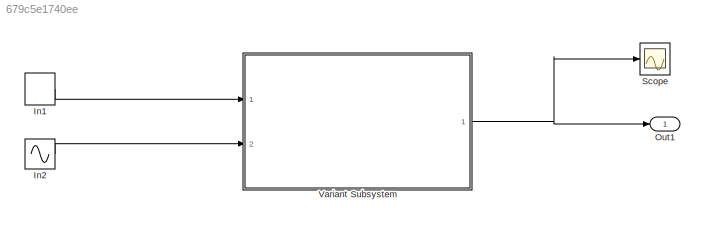
MODEL slx_679c5e1740ee
KIND model
CONFIG AbsTol = auto
CONFIG EnableMultiTasking = off
CONFIG FixedStep = auto
CONFIG MaxStep = auto
CONFIG MinStep = auto
CONFIG RelTol = 1e-3
CONFIG SampleTimeConstraint = Unconstrained
CONFIG Solver = FixedStepAuto
CONFIG SolverName = FixedStepAuto
CONFIG StartTime = 0.0
CONFIG StopTime = 10.0
BLOCK [DiscretePulseGenerator] In1
  Period = 10
  Ports = [0, 1]
  PulseWidth = 5
BLOCK [Sin] In2
  Amplitude = 20
  Bias = 20
  Frequency = 2*pi/24
  Phase = 180
  Ports = [0, 1]
  SampleTime = 1
  SineType = Sample based
BLOCK [Outport] Out1
  IconDisplay = Port number
BLOCK [Scope] Scope
  NumInputPorts = 1
  Ports = [1]
  ScopeSpecificationString = Simulink.scopes.TimeScopeBlockCfg('CurrentConfiguration', extmgr.ConfigurationSet(extmgr.Configuration('Core','General UI',true),extmgr.Configuration('Core','Source UI',true),extmgr.Configuration('Sources','WiredSimulink',true),extmgr.Configuration('Visuals','Time Domain',true,'SerializedDisplays',{struct('MinYLimReal','-650.00000','MaxYLimReal','5850.00000','YLabelReal','','MinYLimMag',' 0.00000'...<+1355ch>
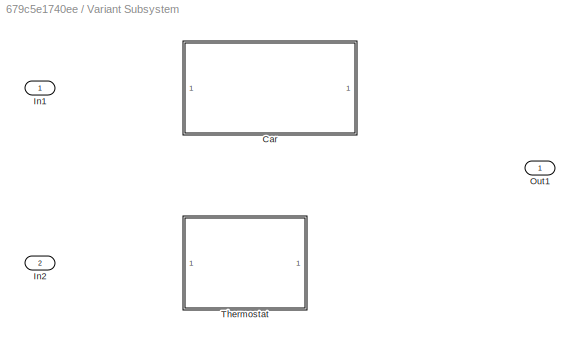
BLOCK [SubSystem] Variant Subsystem
  Ports = [2, 1]
  RequestExecContextInheritance = off
  Variant = on
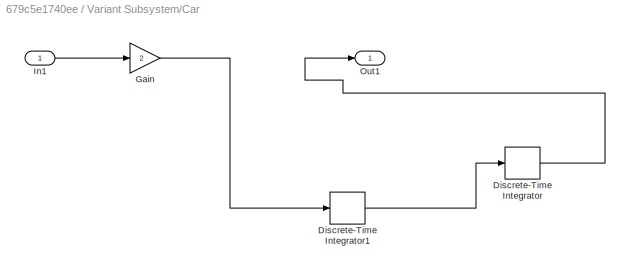
BLOCK [SubSystem] Variant Subsystem/Car
  Ports = [1, 1]
  RequestExecContextInheritance = off
  Variant = off
  VariantControl = VSS_CAR
BLOCK [DiscreteIntegrator] Variant Subsystem/Car/Discrete-Time Integrator
  ICPrevOutput = DiscIntNeverNeededParam
  ICPrevScaledInput = DiscIntNeverNeededParam
  InitialConditionSetting = State (most efficient)
  Ports = [1, 1]
  SampleTime = -1
BLOCK [DiscreteIntegrator] Variant Subsystem/Car/Discrete-Time Integrator1
  ICPrevOutput = DiscIntNeverNeededParam
  ICPrevScaledInput = DiscIntNeverNeededParam
  InitialConditionSetting = State (most efficient)
  Ports = [1, 1]
  SampleTime = -1
BLOCK [Gain] Variant Subsystem/Car/Gain
  Gain = 2
  OutDataTypeStr = Inherit: Inherit via internal rule
  ParamDataTypeStr = Inherit: Inherit via internal rule
  SaturateOnIntegerOverflow = off
BLOCK [Inport] Variant Subsystem/Car/In1
  IconDisplay = Port number
BLOCK [Outport] Variant Subsystem/Car/Out1
  IconDisplay = Port number
BLOCK [Inport] Variant Subsystem/In1
  IconDisplay = Port number
BLOCK [Inport] Variant Subsystem/In2
  IconDisplay = Port number
  Port = 2
BLOCK [Outport] Variant Subsystem/Out1
  IconDisplay = Port number
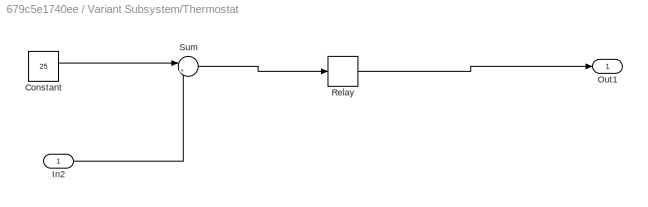
BLOCK [SubSystem] Variant Subsystem/Thermostat
  Ports = [1, 1]
  RequestExecContextInheritance = off
  Variant = off
  VariantControl = VSS_THERMOSTAT
BLOCK [Constant] Variant Subsystem/Thermostat/Constant
  Value = 25
BLOCK [Inport] Variant Subsystem/Thermostat/In2
  IconDisplay = Port number
  Unit = °C
BLOCK [Outport] Variant Subsystem/Thermostat/Out1
  IconDisplay = Port number
BLOCK [Relay] Variant Subsystem/Thermostat/Relay
  InputProcessing = Elements as channels (sample based)
  OffSwitchValue = -2
  OnSwitchValue = 2
BLOCK [Sum] Variant Subsystem/Thermostat/Sum
  IconShape = round
  InputSameDT = off
  Inputs = |+-
  OutDataTypeStr = Inherit: Inherit via internal rule
  Ports = [2, 1]
  SaturateOnIntegerOverflow = off
LINE In1:1 -> Variant Subsystem:1
LINE In2:1 -> Variant Subsystem:2
LINE Variant Subsystem/Car/Discrete-Time Integrator1:1 -> Variant Subsystem/Car/Discrete-Time Integrator:1
LINE Variant Subsystem/Car/Discrete-Time Integrator:1 -> Variant Subsystem/Car/Out1:1
LINE Variant Subsystem/Car/Gain:1 -> Variant Subsystem/Car/Discrete-Time Integrator1:1
LINE Variant Subsystem/Car/In1:1 -> Variant Subsystem/Car/Gain:1
LINE Variant Subsystem/Thermostat/Constant:1 -> Variant Subsystem/Thermostat/Sum:1
LINE Variant Subsystem/Thermostat/In2:1 -> Variant Subsystem/Thermostat/Sum:2
LINE Variant Subsystem/Thermostat/Relay:1 -> Variant Subsystem/Thermostat/Out1:1
LINE Variant Subsystem/Thermostat/Sum:1 -> Variant Subsystem/Thermostat/Relay:1
NET Variant Subsystem:1 -> Out1:1, Scope:1
note: NET lines group one-source signal fan-out (src -> all destinations, sorted); 1:1 wires keep LINE
